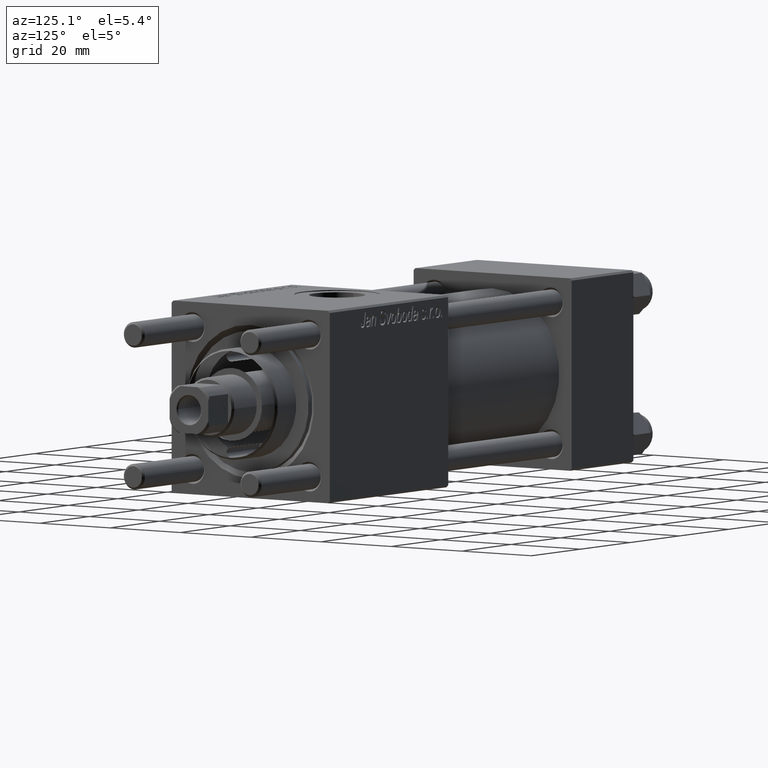
[diagram: clean part render]
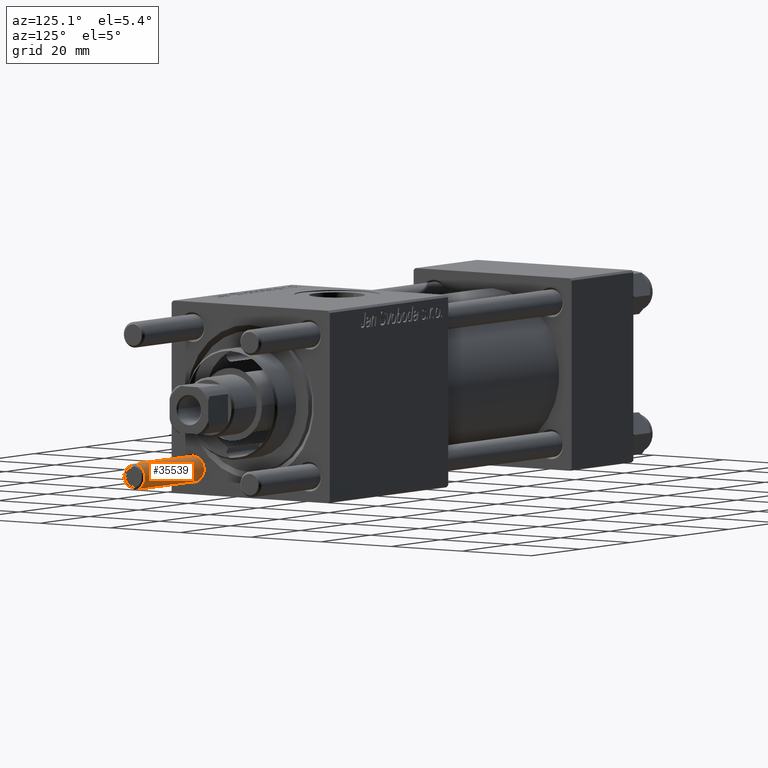
[diagram: same view with one face highlighted and labeled with its STEP entity id]
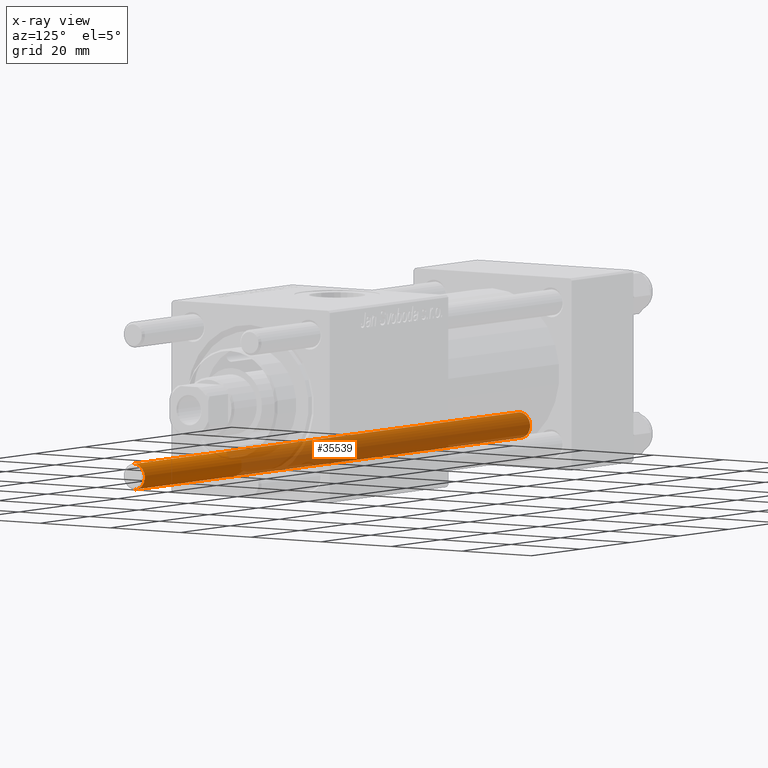
[diagram: x-ray of the same camera — body ghosted, the highlighted face saturated]
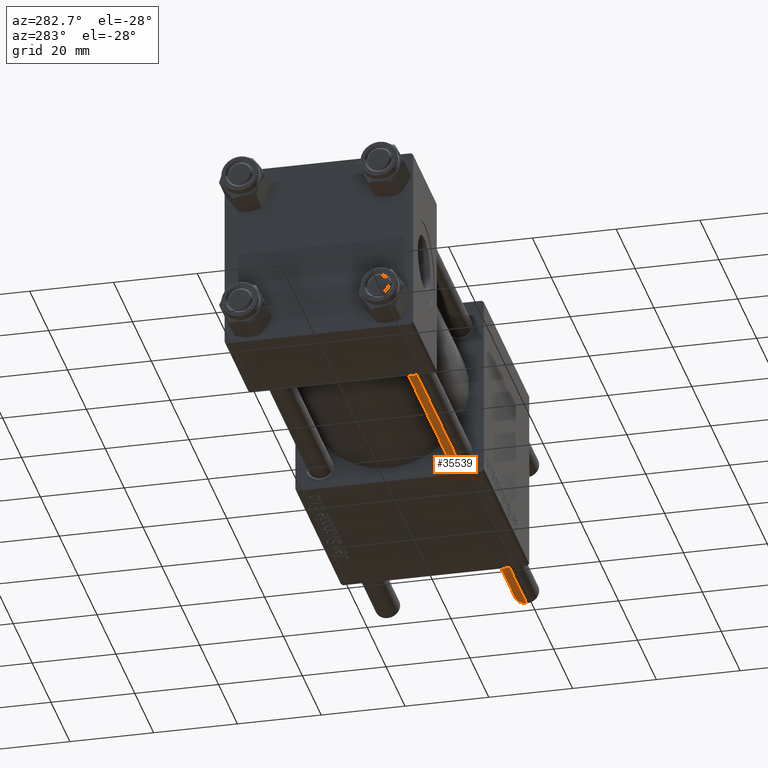
[diagram: same view with one face highlighted and labeled with its STEP entity id]
A machine part, auxiliary view. The second image highlights one B-rep face of the part: STEP entity #35539.
The next image is the same camera in x-ray: the body ghosted, the highlighted face saturated — about 76% of this face is hidden behind the body in this view.
A second angle (auxiliary view) of the same face is appended — the face is thin or edge-on in the first view.
In plain terms, the highlighted cylindrical surface (edge-blend (fillet) strip) has radius 3 mm, axis along (1, 0, 0).
Its self-contained STEP definition (entity closure, byte-faithful):
#2471 = VERTEX_POINT ( 'NONE', #5266 ) ;
#2914 = AXIS2_PLACEMENT_3D ( 'NONE', #52972, #14371, #48656 ) ;
#3174 = DIRECTION ( 'NONE',  ( 1.000000000000000000, 0.000000000000000000, 0.000000000000000000 ) ) ;
#3822 = CIRCLE ( 'NONE', #2914, 3.000000000000000444 ) ;
#4395 = VECTOR ( 'NONE', #23351, 1000.000000000000000 ) ;
#4520 = CARTESIAN_POINT ( 'NONE',  ( 0.000000000000000000, 0.000000000000000000, 157.0000000000000000 ) ) ;
#5266 = CARTESIAN_POINT ( 'NONE',  ( 3.000000000000000444, 3.673940397442060361E-16, 0.4999999999999726885 ) ) ;
#5495 = CARTESIAN_POINT ( 'NONE',  ( 3.000000000000000444, 3.673940397442060361E-16, 157.0000000000000000 ) ) ;
#7872 = ORIENTED_EDGE ( 'NONE', *, *, #25305, .T. ) ;
#8824 = DIRECTION ( 'NONE',  ( -1.000000000000000000, 0.000000000000000000, 0.000000000000000000 ) ) ;
#8940 = VERTEX_POINT ( 'NONE', #44531 ) ;
#9122 = CARTESIAN_POINT ( 'NONE',  ( -3.000000000000000444, 0.000000000000000000, 0.4999999999999726885 ) ) ;
#9167 = LINE ( 'NONE', #31620, #54397 ) ;
#13168 = VERTEX_POINT ( 'NONE', #38518 ) ;
#13219 = CARTESIAN_POINT ( 'NONE',  ( 0.000000000000000000, 0.000000000000000000, 0.4999999999999726885 ) ) ;
#14371 = DIRECTION ( 'NONE',  ( 0.000000000000000000, 0.000000000000000000, -1.000000000000000000 ) ) ;
#17477 = CYLINDRICAL_SURFACE ( 'NONE', #33584, 3.000000000000000444 ) ;
#17500 = VERTEX_POINT ( 'NONE', #9122 ) ;
#23351 = DIRECTION ( 'NONE',  ( -0.000000000000000000, -0.000000000000000000, -1.000000000000000000 ) ) ;
#24547 = EDGE_LOOP ( 'NONE', ( #32930, #26529, #7872, #39797 ) ) ;
#25305 = EDGE_CURVE ( 'NONE', #8940, #17500, #9167, .T. ) ;
#26529 = ORIENTED_EDGE ( 'NONE', *, *, #56596, .T. ) ;
#26903 = CIRCLE ( 'NONE', #33304, 3.000000000000000444 ) ;
#28161 = EDGE_CURVE ( 'NONE', #17500, #2471, #26903, .T. ) ;
#30712 = DIRECTION ( 'NONE',  ( -0.000000000000000000, -0.000000000000000000, -1.000000000000000000 ) ) ;
#31620 = CARTESIAN_POINT ( 'NONE',  ( -3.000000000000000444, 0.000000000000000000, 157.0000000000000000 ) ) ;
#32930 = ORIENTED_EDGE ( 'NONE', *, *, #40586, .F. ) ;
#33304 = AXIS2_PLACEMENT_3D ( 'NONE', #13219, #47502, #3174 ) ;
#33584 = AXIS2_PLACEMENT_3D ( 'NONE', #4520, #30712, #8824 ) ;
#35539 = ADVANCED_FACE ( 'NONE', ( #56928 ), #17477, .T. ) ;
#38518 = CARTESIAN_POINT ( 'NONE',  ( 3.000000000000000444, 3.673940397442060361E-16, 156.5000000000000284 ) ) ;
#39797 = ORIENTED_EDGE ( 'NONE', *, *, #28161, .T. ) ;
#40586 = EDGE_CURVE ( 'NONE', #13168, #2471, #53297, .T. ) ;
#44531 = CARTESIAN_POINT ( 'NONE',  ( -3.000000000000000444, 0.000000000000000000, 156.5000000000000284 ) ) ;
#45171 = DIRECTION ( 'NONE',  ( -0.000000000000000000, -0.000000000000000000, -1.000000000000000000 ) ) ;
#47502 = DIRECTION ( 'NONE',  ( -0.000000000000000000, -0.000000000000000000, 1.000000000000000000 ) ) ;
#48656 = DIRECTION ( 'NONE',  ( 1.000000000000000000, 0.000000000000000000, 0.000000000000000000 ) ) ;
#52972 = CARTESIAN_POINT ( 'NONE',  ( 0.000000000000000000, 0.000000000000000000, 156.5000000000000284 ) ) ;
#53297 = LINE ( 'NONE', #5495, #4395 ) ;
#54397 = VECTOR ( 'NONE', #45171, 1000.000000000000000 ) ;
#56596 = EDGE_CURVE ( 'NONE', #13168, #8940, #3822, .T. ) ;
#56928 = FACE_OUTER_BOUND ( 'NONE', #24547, .T. ) ;